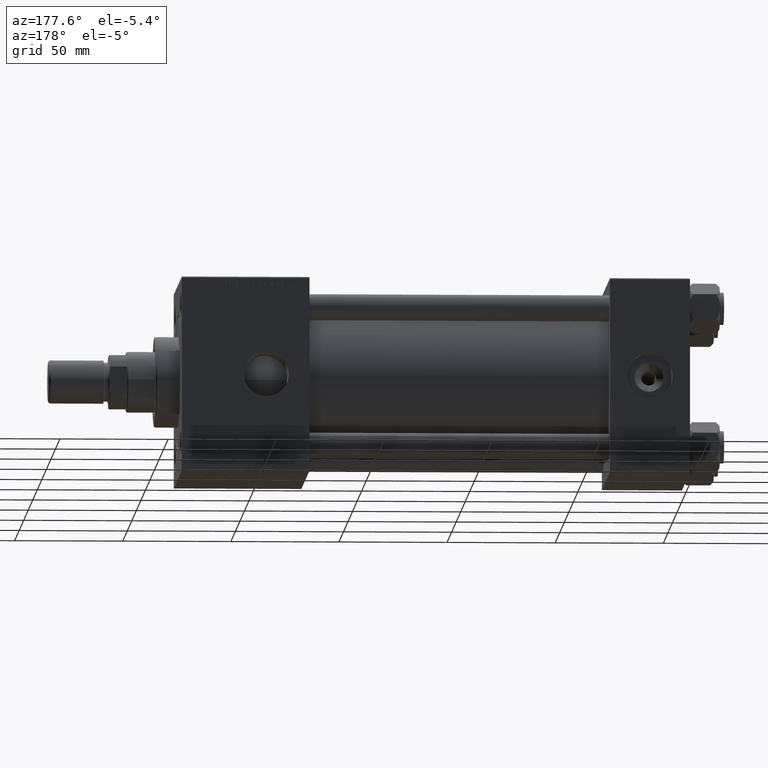
[diagram: clean part render]
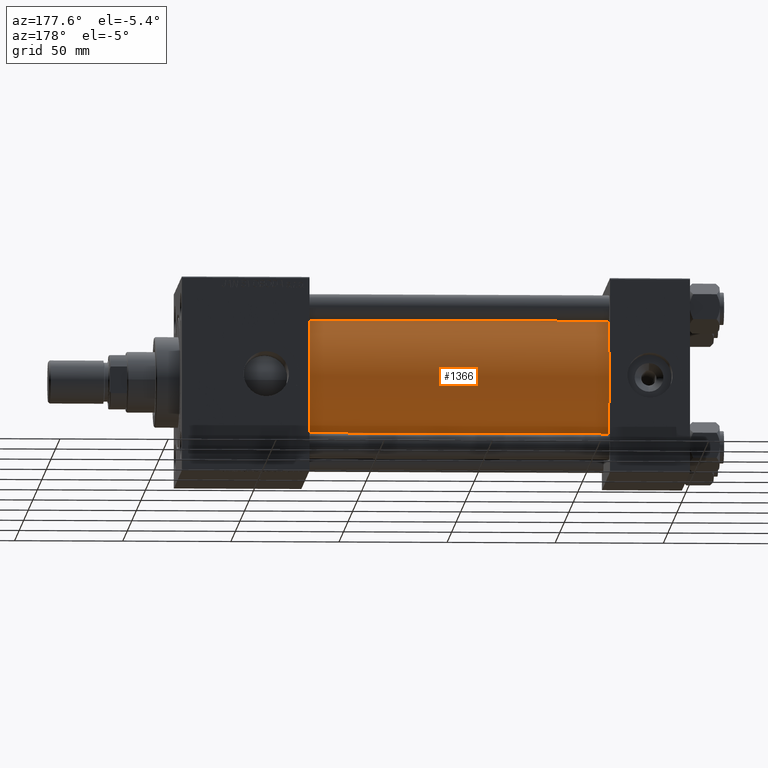
[diagram: same view with one face highlighted and labeled with its STEP entity id]
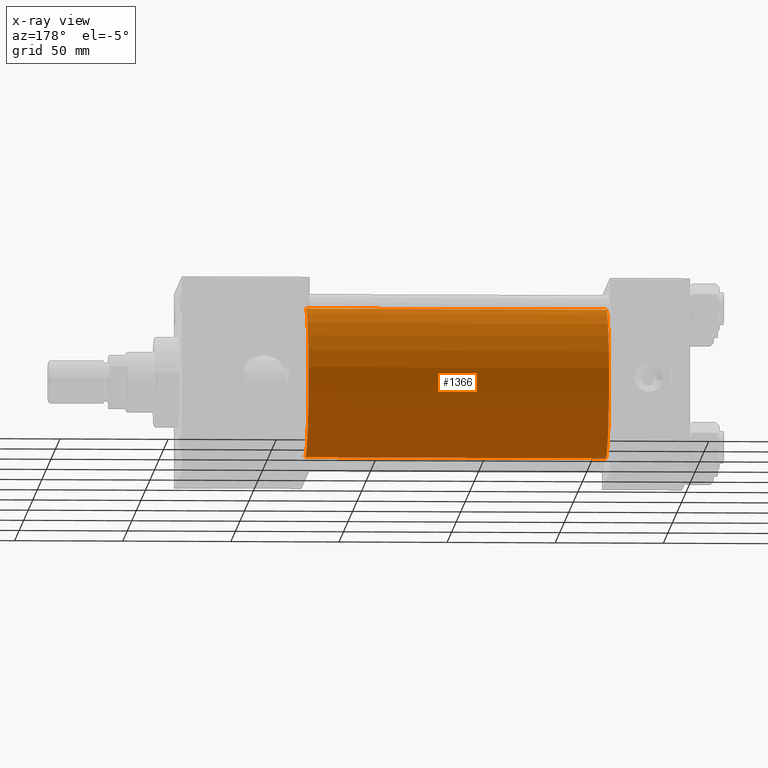
[diagram: x-ray of the same camera — body ghosted, the highlighted face saturated]
A machine part, auxiliary view. The second image highlights one B-rep face of the part: STEP entity #1366.
The next image is the same camera in x-ray: the body ghosted, the highlighted face saturated — about 0% of this face is hidden behind the body in this view.
In plain terms, the highlighted cylindrical surface (partial cylindrical patch) has radius 34.5 mm, axis along (-1, -0, -0).
Its self-contained STEP definition (entity closure, byte-faithful):
#1366 = ADVANCED_FACE ( 'NONE', ( #48761 ), #48228, .T. ) ;
#1367 = AXIS2_PLACEMENT_3D ( 'NONE', #33478, #13689, #46044 ) ;
#2566 = CIRCLE ( 'NONE', #33317, 34.50000000000000000 ) ;
#3868 = CARTESIAN_POINT ( 'NONE',  ( 176.0000000000000284, 1.622946243093158675E-15, -34.50000000000000000 ) ) ;
#4264 = EDGE_CURVE ( 'NONE', #37043, #37901, #44661, .T. ) ;
#6636 = CARTESIAN_POINT ( 'NONE',  ( 176.0000000000000284, -2.602085213965210642E-15, 34.50000000000000000 ) ) ;
#8028 = DIRECTION ( 'NONE',  ( -1.000000000000000000, -0.000000000000000000, -0.000000000000000000 ) ) ;
#12063 = LINE ( 'NONE', #28634, #39330 ) ;
#13689 = DIRECTION ( 'NONE',  ( 1.000000000000000000, 0.000000000000000000, 0.000000000000000000 ) ) ;
#13964 = AXIS2_PLACEMENT_3D ( 'NONE', #28965, #27889, #16673 ) ;
#16673 = DIRECTION ( 'NONE',  ( 0.000000000000000000, 0.000000000000000000, 1.000000000000000000 ) ) ;
#19095 = CARTESIAN_POINT ( 'NONE',  ( 37.00000000000000711, -2.602085213965210642E-15, 34.50000000000000000 ) ) ;
#24345 = CARTESIAN_POINT ( 'NONE',  ( 176.0000000000000284, 1.622946243093158675E-15, -34.50000000000000000 ) ) ;
#24384 = CARTESIAN_POINT ( 'NONE',  ( 37.00000000000000711, 1.622946243093158675E-15, -34.50000000000000000 ) ) ;
#26041 = ORIENTED_EDGE ( 'NONE', *, *, #34398, .F. ) ;
#27024 = CIRCLE ( 'NONE', #1367, 34.50000000000000000 ) ;
#27889 = DIRECTION ( 'NONE',  ( -1.000000000000000000, -0.000000000000000000, -0.000000000000000000 ) ) ;
#28367 = DIRECTION ( 'NONE',  ( -1.000000000000000000, -0.000000000000000000, -0.000000000000000000 ) ) ;
#28634 = CARTESIAN_POINT ( 'NONE',  ( 176.0000000000000284, -2.602085213965210642E-15, 34.50000000000000000 ) ) ;
#28965 = CARTESIAN_POINT ( 'NONE',  ( 176.0000000000000284, -2.602085213965210642E-15, 0.000000000000000000 ) ) ;
#31489 = ORIENTED_EDGE ( 'NONE', *, *, #4264, .T. ) ;
#31742 = ORIENTED_EDGE ( 'NONE', *, *, #50805, .T. ) ;
#33317 = AXIS2_PLACEMENT_3D ( 'NONE', #34547, #38818, #50871 ) ;
#33478 = CARTESIAN_POINT ( 'NONE',  ( 176.0000000000000284, -2.602085213965210642E-15, 0.000000000000000000 ) ) ;
#34398 = EDGE_CURVE ( 'NONE', #37043, #36521, #27024, .T. ) ;
#34547 = CARTESIAN_POINT ( 'NONE',  ( 37.00000000000000711, -2.602085213965210642E-15, 0.000000000000000000 ) ) ;
#36521 = VERTEX_POINT ( 'NONE', #6636 ) ;
#37043 = VERTEX_POINT ( 'NONE', #3868 ) ;
#37901 = VERTEX_POINT ( 'NONE', #24384 ) ;
#38818 = DIRECTION ( 'NONE',  ( 1.000000000000000000, -0.000000000000000000, 0.000000000000000000 ) ) ;
#39330 = VECTOR ( 'NONE', #28367, 1000.000000000000000 ) ;
#42857 = VECTOR ( 'NONE', #8028, 1000.000000000000000 ) ;
#44661 = LINE ( 'NONE', #24345, #42857 ) ;
#46044 = DIRECTION ( 'NONE',  ( 0.000000000000000000, 0.000000000000000000, -1.000000000000000000 ) ) ;
#48228 = CYLINDRICAL_SURFACE ( 'NONE', #13964, 34.50000000000000000 ) ;
#48761 = FACE_OUTER_BOUND ( 'NONE', #51623, .T. ) ;
#50805 = EDGE_CURVE ( 'NONE', #37901, #52230, #2566, .T. ) ;
#50871 = DIRECTION ( 'NONE',  ( 0.000000000000000000, 0.000000000000000000, 1.000000000000000000 ) ) ;
#51623 = EDGE_LOOP ( 'NONE', ( #26041, #31489, #31742, #52302 ) ) ;
#51964 = EDGE_CURVE ( 'NONE', #36521, #52230, #12063, .T. ) ;
#52230 = VERTEX_POINT ( 'NONE', #19095 ) ;
#52302 = ORIENTED_EDGE ( 'NONE', *, *, #51964, .F. ) ;